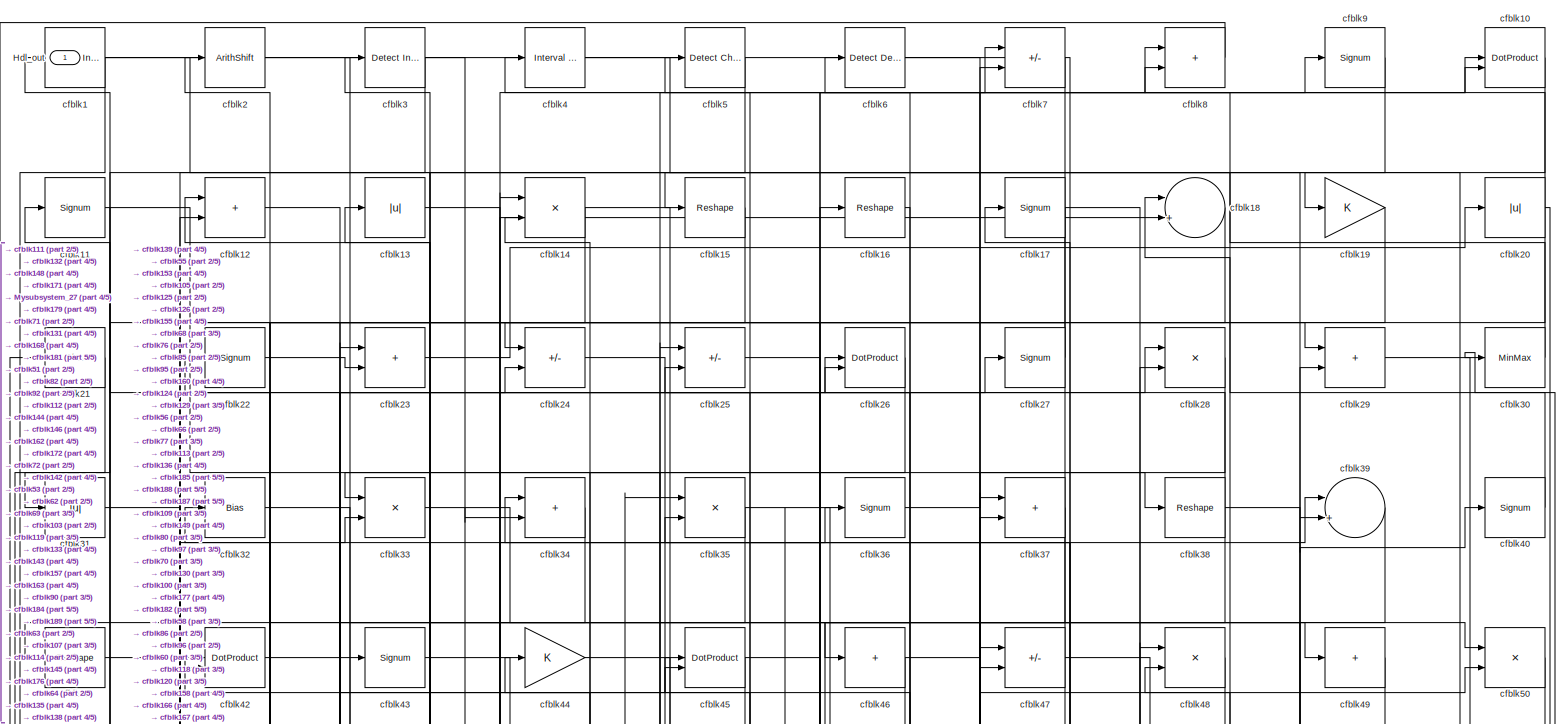
[diagram: root canvas - part 1/5, full width, top band]
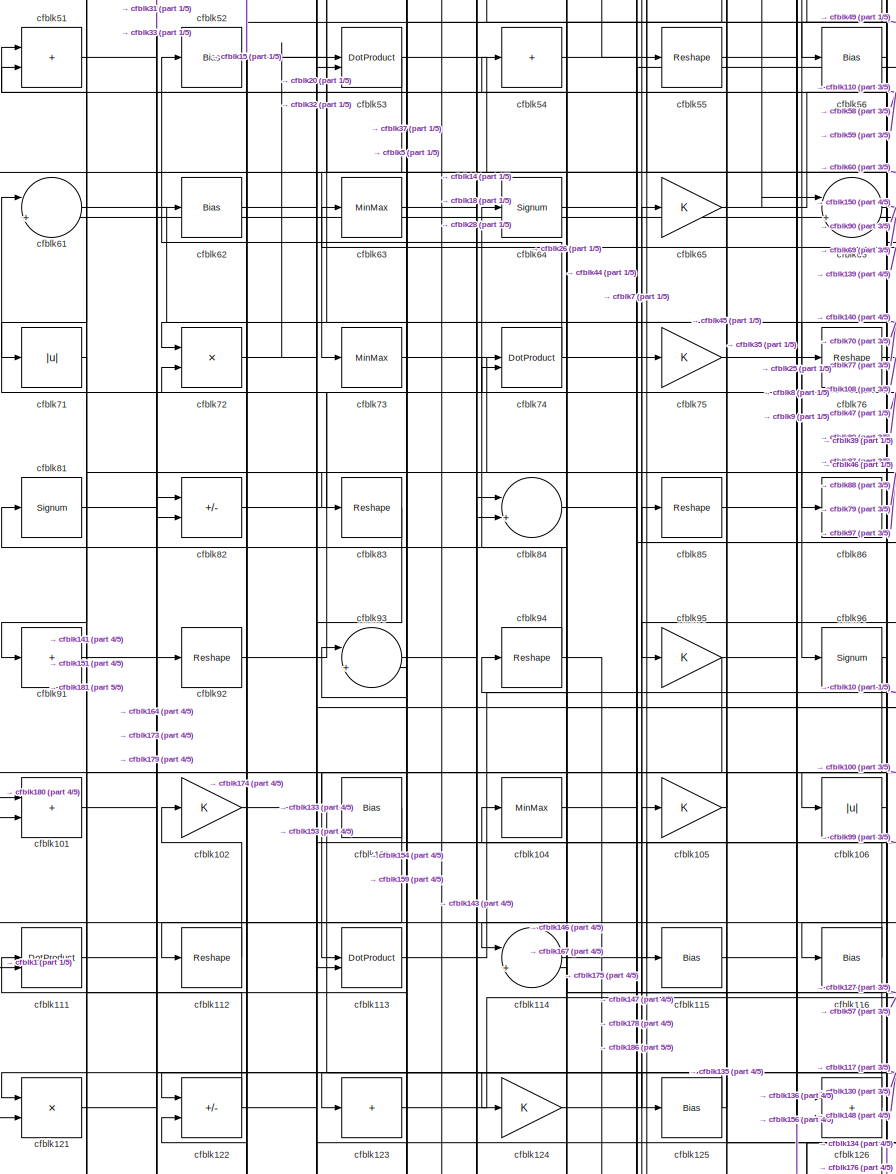
[diagram: root canvas - part 2/5, middle left region]
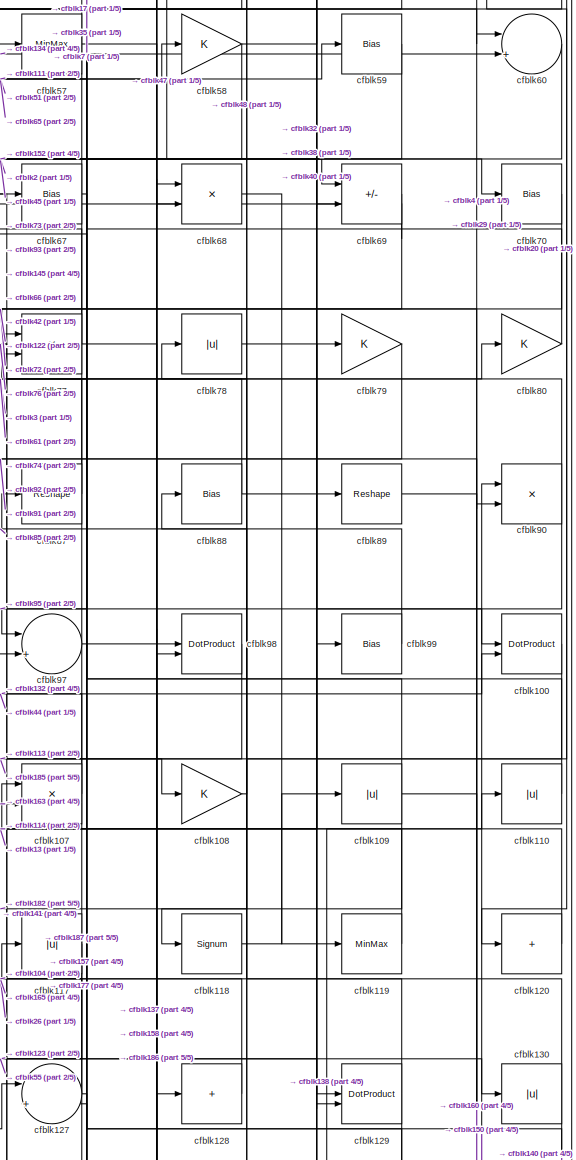
[diagram: root canvas - part 3/5, middle right region]
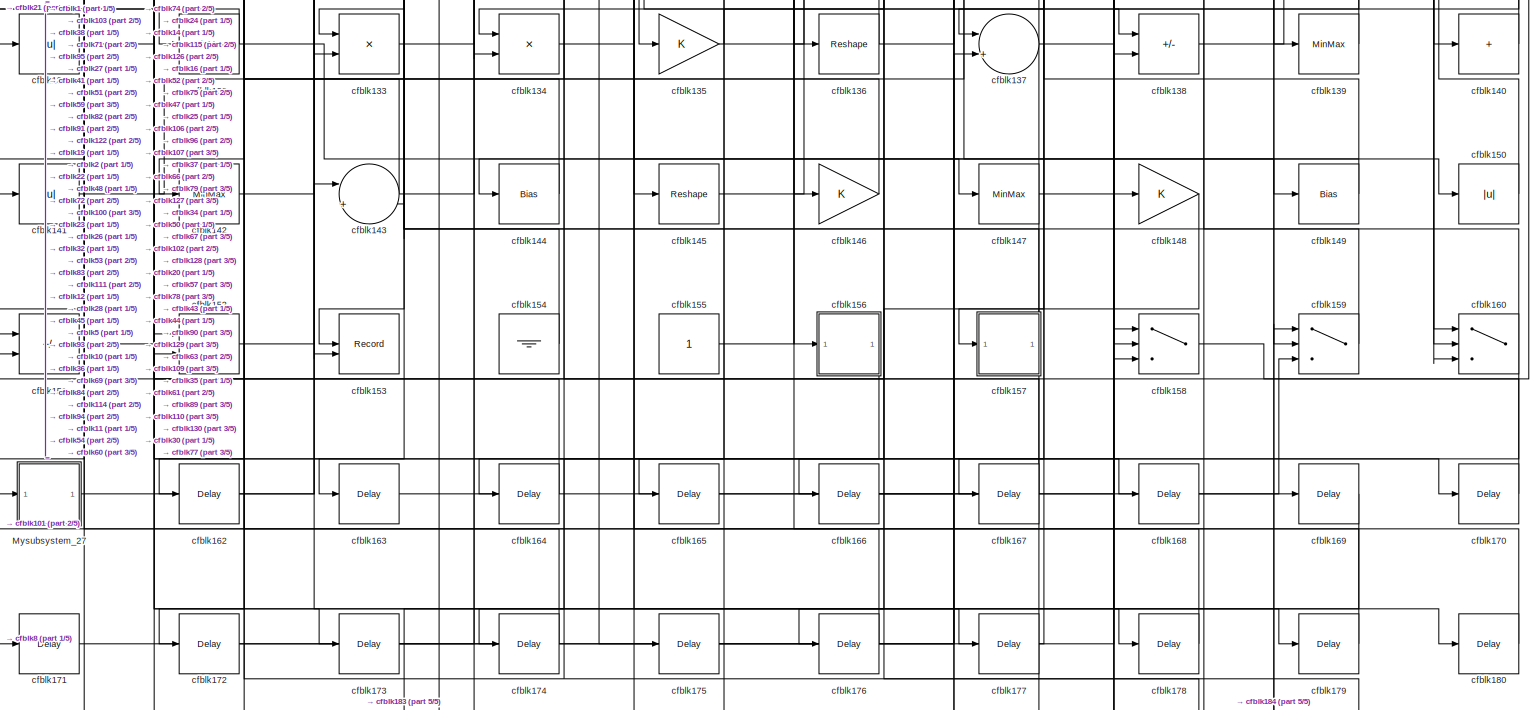
[diagram: root canvas - part 4/5, full width, bottom band]
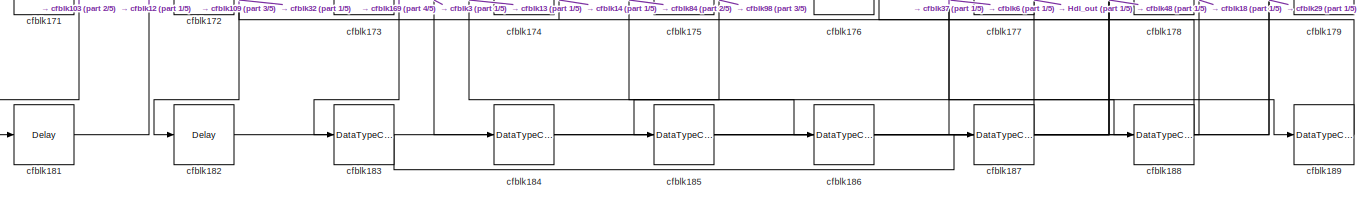
[diagram: root canvas - part 5/5, full width, bottom band]
MODEL slx_d763d41da8b3
KIND model
CONFIG AbsTol = auto
CONFIG EnableMultiTasking = off
CONFIG FixedStep = auto
CONFIG MaxStep = auto
CONFIG MinStep = auto
CONFIG RelTol = 1e-3
CONFIG SampleTimeConstraint = Unconstrained
CONFIG SolverName = VariableStepAuto
CONFIG StartTime = 0.0
CONFIG StopTime = 10.0
BLOCK [Outport] Hdl_out
  OutDataTypeStr = uint8
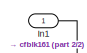
[diagram: Mysubsystem_27 - part 1/2, top right region]
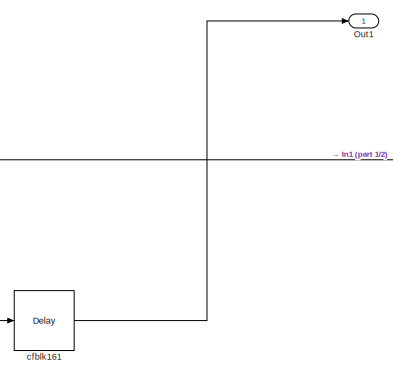
[diagram: Mysubsystem_27 - part 2/2, bottom left region]
BLOCK [SubSystem] Mysubsystem_27
  RTWFcnName = Mysubsystem_27
  RTWFcnNameOpts = User specified
  RTWFileNameOpts = Use function name
  RTWSystemCode = Reusable function
  TreatAsAtomicUnit = on
BLOCK [Inport] Mysubsystem_27/In1
BLOCK [Outport] Mysubsystem_27/Out1
BLOCK [Delay] Mysubsystem_27/cfblk161
  InputPortMap = u0
  SampleTime = 1
BLOCK [Reference] cfblk1  REF=simulink/Logic and Bit
Operations/Detect
Increase
  LibrarySourceBlock = hdlsllib/Logic and Bit\nOperations/Detect\nIncrease
  SourceBlock = simulink/Logic and Bit\nOperations/Detect\nIncrease
  SourceType = Detect Increase
BLOCK [DotProduct] cfblk10
  OutDataTypeStr = uint8
BLOCK [DotProduct] cfblk100
  OutDataTypeStr = uint8
BLOCK [Sum] cfblk101
  IconShape = rectangular
  OutDataTypeStr = uint8
BLOCK [Gain] cfblk102
  OutDataTypeStr = uint8
BLOCK [Bias] cfblk103
  Bias = 0.0
  SaturateOnIntegerOverflow = off
BLOCK [MinMax] cfblk104
  OutDataTypeStr = uint8
BLOCK [Gain] cfblk105
  OutDataTypeStr = uint8
BLOCK [Abs] cfblk106
  OutDataTypeStr = uint8
  SaturateOnIntegerOverflow = off
BLOCK [Product] cfblk107
  Inputs = */
  OutDataTypeStr = uint8
  RndMeth = Zero
  SaturateOnIntegerOverflow = on
BLOCK [Gain] cfblk108
  OutDataTypeStr = uint8
BLOCK [Abs] cfblk109
  OutDataTypeStr = uint8
  SaturateOnIntegerOverflow = off
BLOCK [Signum] cfblk11
BLOCK [Abs] cfblk110
  OutDataTypeStr = uint8
  SaturateOnIntegerOverflow = off
BLOCK [DotProduct] cfblk111
  OutDataTypeStr = uint8
BLOCK [Reshape] cfblk112
BLOCK [DotProduct] cfblk113
  OutDataTypeStr = uint8
BLOCK [Sum] cfblk114
  Inputs = |++
  OutDataTypeStr = uint8
BLOCK [Bias] cfblk115
  Bias = 0.0
  SaturateOnIntegerOverflow = off
BLOCK [Bias] cfblk116
  Bias = 0.0
  SaturateOnIntegerOverflow = off
BLOCK [Abs] cfblk117
  OutDataTypeStr = uint8
  SaturateOnIntegerOverflow = off
BLOCK [Signum] cfblk118
BLOCK [MinMax] cfblk119
  OutDataTypeStr = uint8
BLOCK [Sum] cfblk12
  IconShape = rectangular
  OutDataTypeStr = uint8
BLOCK [Sum] cfblk120
  IconShape = rectangular
  Inputs = +
  OutDataTypeStr = uint8
BLOCK [Product] cfblk121
  Inputs = */
  OutDataTypeStr = uint8
  RndMeth = Zero
  SaturateOnIntegerOverflow = on
BLOCK [Sum] cfblk122
  IconShape = rectangular
  Inputs = +-
  OutDataTypeStr = uint8
BLOCK [Sum] cfblk123
  IconShape = rectangular
  Inputs = +
  OutDataTypeStr = uint8
BLOCK [Gain] cfblk124
  OutDataTypeStr = uint8
BLOCK [Bias] cfblk125
  Bias = 0.0
  SaturateOnIntegerOverflow = off
BLOCK [Sum] cfblk126
  IconShape = rectangular
  OutDataTypeStr = uint8
BLOCK [Sum] cfblk127
  Inputs = |++
  OutDataTypeStr = uint8
BLOCK [Sum] cfblk128
  IconShape = rectangular
  Inputs = +
  OutDataTypeStr = uint8
BLOCK [DotProduct] cfblk129
  OutDataTypeStr = uint8
BLOCK [Abs] cfblk13
  OutDataTypeStr = uint8
  SaturateOnIntegerOverflow = off
BLOCK [Abs] cfblk130
  OutDataTypeStr = uint8
  SaturateOnIntegerOverflow = off
BLOCK [Abs] cfblk131
  OutDataTypeStr = uint8
  SaturateOnIntegerOverflow = off
BLOCK [MinMax] cfblk132
  OutDataTypeStr = uint8
BLOCK [Product] cfblk133
  Inputs = */
  OutDataTypeStr = uint8
  RndMeth = Zero
  SaturateOnIntegerOverflow = on
BLOCK [Product] cfblk134
  Inputs = */
  OutDataTypeStr = uint8
  RndMeth = Zero
  SaturateOnIntegerOverflow = on
BLOCK [Gain] cfblk135
  OutDataTypeStr = uint8
BLOCK [Reshape] cfblk136
BLOCK [Sum] cfblk137
  Inputs = |++
  OutDataTypeStr = uint8
BLOCK [Sum] cfblk138
  IconShape = rectangular
  Inputs = +-
  OutDataTypeStr = uint8
BLOCK [MinMax] cfblk139
  OutDataTypeStr = uint8
BLOCK [Product] cfblk14
  Inputs = */
  OutDataTypeStr = uint8
  RndMeth = Zero
  SaturateOnIntegerOverflow = on
BLOCK [Sum] cfblk140
  IconShape = rectangular
  Inputs = +
  OutDataTypeStr = uint8
BLOCK [Abs] cfblk141
  OutDataTypeStr = uint8
  SaturateOnIntegerOverflow = off
BLOCK [MinMax] cfblk142
  OutDataTypeStr = uint8
BLOCK [Sum] cfblk143
  Inputs = |++
  OutDataTypeStr = uint8
BLOCK [Bias] cfblk144
  Bias = 0.0
  SaturateOnIntegerOverflow = off
BLOCK [Reshape] cfblk145
BLOCK [Gain] cfblk146
  OutDataTypeStr = uint8
BLOCK [MinMax] cfblk147
  OutDataTypeStr = uint8
BLOCK [Gain] cfblk148
  OutDataTypeStr = uint8
BLOCK [Bias] cfblk149
  Bias = 0.0
  SaturateOnIntegerOverflow = off
BLOCK [Reshape] cfblk15
BLOCK [Abs] cfblk150
  OutDataTypeStr = uint8
  SaturateOnIntegerOverflow = off
BLOCK [Sum] cfblk151
  IconShape = rectangular
  Inputs = +-
  OutDataTypeStr = uint8
BLOCK [Sum] cfblk152
  IconShape = rectangular
  OutDataTypeStr = uint8
BLOCK [Record] cfblk153
  CompatibilityTag = XY
  FileSettingsInternal = {"entries":[{"content":{"excelSettings":{"content":{},"type":"Streamout.ExcelSettings"}},"type":"Streamout.FileSettingStorage","uuid":""}],"packageUris":["http:\/\/schema.mathworks.com\/mf0\/streamout_blocks\/R2020a"],"version":"1.0"}
  Layout = [1 1]
  SignalsInternal = {"entries":[{"content":{"signals":[{"content":{"blockPath":[],"dimensions":[1],"domain":"","lineColor":"#a2142f","plots":[1],"port":1,"signalID":26840,"signalName":"cfblk45"},"type":"RecordBlkView.Signal","uuid":""},{"content":{"blockPath":[],"dimensions":[1],"domain":"","lineColor":"#139fff","plots":[1],"port":2,"signalID":26843,"signalName":"cfblk83"},"type":"RecordBlkView.Signal","uuid":""}]},"...<+142ch>
  VisualizationBindings = {"xyplotplugin":{"info":[{"series":[{"bindingParametersList":[{"parameter":"X-Axis","signalID":26840,"signalName":"cfblk45"},{"parameter":"Y-Axis","signalID":26843,"signalName":"cfblk83"}],"seriesID":20966}],"subplotID":1}]}}
  st = -1
BLOCK [Ground] cfblk154
BLOCK [Constant] cfblk155
  OutDataTypeStr = uint8
  SampleTime = -1
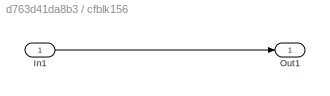
BLOCK [SubSystem] cfblk156
  LibrarySourceBlock = hdlsllib/Ports &\nSubsystems/Subsystem
BLOCK [Inport] cfblk156/In1
BLOCK [Outport] cfblk156/Out1
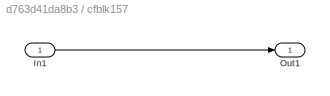
BLOCK [SubSystem] cfblk157
  LibrarySourceBlock = hdlsllib/Ports &\nSubsystems/Subsystem
BLOCK [Inport] cfblk157/In1
BLOCK [Outport] cfblk157/Out1
BLOCK [Switch] cfblk158
  InputSameDT = off
  OutDataTypeStr = uint8
  SaturateOnIntegerOverflow = off
BLOCK [Switch] cfblk159
  InputSameDT = off
  OutDataTypeStr = uint8
  SaturateOnIntegerOverflow = off
BLOCK [Reshape] cfblk16
BLOCK [Switch] cfblk160
  InputSameDT = off
  OutDataTypeStr = uint8
  SaturateOnIntegerOverflow = off
BLOCK [Delay] cfblk162
  InputPortMap = u0
  SampleTime = 1
BLOCK [Delay] cfblk163
  InputPortMap = u0
  SampleTime = 1
BLOCK [Delay] cfblk164
  InputPortMap = u0
  SampleTime = 1
BLOCK [Delay] cfblk165
  InputPortMap = u0
  SampleTime = 1
BLOCK [Delay] cfblk166
  InputPortMap = u0
  SampleTime = 1
BLOCK [Delay] cfblk167
  InputPortMap = u0
  SampleTime = 1
BLOCK [Delay] cfblk168
  InputPortMap = u0
  SampleTime = 1
BLOCK [Delay] cfblk169
  InputPortMap = u0
  SampleTime = 1
BLOCK [Signum] cfblk17
BLOCK [Delay] cfblk170
  InputPortMap = u0
  SampleTime = 1
BLOCK [Delay] cfblk171
  InputPortMap = u0
  SampleTime = 1
BLOCK [Delay] cfblk172
  InputPortMap = u0
  SampleTime = 1
BLOCK [Delay] cfblk173
  InputPortMap = u0
  SampleTime = 1
BLOCK [Delay] cfblk174
  InputPortMap = u0
  SampleTime = 1
BLOCK [Delay] cfblk175
  InputPortMap = u0
  SampleTime = 1
BLOCK [Delay] cfblk176
  InputPortMap = u0
  SampleTime = 1
BLOCK [Delay] cfblk177
  InputPortMap = u0
  SampleTime = 1
BLOCK [Delay] cfblk178
  InputPortMap = u0
  SampleTime = 1
BLOCK [Delay] cfblk179
  InputPortMap = u0
  SampleTime = 1
BLOCK [Sum] cfblk18
  Inputs = |++
  OutDataTypeStr = uint8
BLOCK [Delay] cfblk180
  InputPortMap = u0
  SampleTime = 1
BLOCK [Delay] cfblk181
  InputPortMap = u0
  SampleTime = 1
BLOCK [Delay] cfblk182
  InputPortMap = u0
  SampleTime = 1
BLOCK [DataTypeConversion] cfblk183
  OutDataTypeStr = uint8
  RndMeth = Floor
  SaturateOnIntegerOverflow = off
BLOCK [DataTypeConversion] cfblk184
  OutDataTypeStr = uint8
  RndMeth = Floor
  SaturateOnIntegerOverflow = off
BLOCK [DataTypeConversion] cfblk185
  OutDataTypeStr = uint8
  RndMeth = Floor
  SaturateOnIntegerOverflow = off
BLOCK [DataTypeConversion] cfblk186
  OutDataTypeStr = uint8
  RndMeth = Floor
  SaturateOnIntegerOverflow = off
BLOCK [DataTypeConversion] cfblk187
  OutDataTypeStr = uint8
  RndMeth = Floor
  SaturateOnIntegerOverflow = off
BLOCK [DataTypeConversion] cfblk188
  OutDataTypeStr = uint8
  RndMeth = Floor
  SaturateOnIntegerOverflow = off
BLOCK [DataTypeConversion] cfblk189
  OutDataTypeStr = uint8
  RndMeth = Floor
  SaturateOnIntegerOverflow = off
BLOCK [Gain] cfblk19
  OutDataTypeStr = uint8
BLOCK [ArithShift] cfblk2
  BitShiftNumber = 8
  InputPortMap = u0
BLOCK [Abs] cfblk20
  OutDataTypeStr = uint8
  SaturateOnIntegerOverflow = off
BLOCK [Bias] cfblk21
  Bias = 0.0
  SaturateOnIntegerOverflow = off
BLOCK [Signum] cfblk22
BLOCK [Sum] cfblk23
  IconShape = rectangular
  OutDataTypeStr = uint8
BLOCK [Sum] cfblk24
  IconShape = rectangular
  Inputs = +-
  OutDataTypeStr = uint8
BLOCK [Sum] cfblk25
  IconShape = rectangular
  Inputs = +-
  OutDataTypeStr = uint8
BLOCK [DotProduct] cfblk26
  OutDataTypeStr = uint8
BLOCK [Signum] cfblk27
BLOCK [Product] cfblk28
  Inputs = */
  OutDataTypeStr = uint8
  RndMeth = Zero
  SaturateOnIntegerOverflow = on
BLOCK [Sum] cfblk29
  IconShape = rectangular
  OutDataTypeStr = uint8
BLOCK [Reference] cfblk3  REF=simulink/Logic and Bit
Operations/Detect
Increase
  LibrarySourceBlock = hdlsllib/Logic and Bit\nOperations/Detect\nIncrease
  SourceBlock = simulink/Logic and Bit\nOperations/Detect\nIncrease
  SourceType = Detect Increase
BLOCK [MinMax] cfblk30
  OutDataTypeStr = uint8
BLOCK [Abs] cfblk31
  OutDataTypeStr = uint8
  SaturateOnIntegerOverflow = off
BLOCK [Bias] cfblk32
  Bias = 0.0
  SaturateOnIntegerOverflow = off
BLOCK [Product] cfblk33
  Inputs = */
  OutDataTypeStr = uint8
  RndMeth = Zero
  SaturateOnIntegerOverflow = on
BLOCK [Sum] cfblk34
  IconShape = rectangular
  OutDataTypeStr = uint8
BLOCK [Product] cfblk35
  Inputs = */
  OutDataTypeStr = uint8
  RndMeth = Zero
  SaturateOnIntegerOverflow = on
BLOCK [Signum] cfblk36
BLOCK [Sum] cfblk37
  IconShape = rectangular
  OutDataTypeStr = uint8
BLOCK [Reshape] cfblk38
BLOCK [Sum] cfblk39
  Inputs = |++
  OutDataTypeStr = uint8
BLOCK [Reference] cfblk4  REF=hdlsllib/Logic and Bit
Operations/Interval Test
  SourceBlock = hdlsllib/Logic and Bit\nOperations/Interval Test
  SourceType = Interval Test
BLOCK [Signum] cfblk40
BLOCK [Reshape] cfblk41
BLOCK [DotProduct] cfblk42
  OutDataTypeStr = uint8
BLOCK [Signum] cfblk43
BLOCK [Gain] cfblk44
  OutDataTypeStr = uint8
BLOCK [DotProduct] cfblk45
  OutDataTypeStr = uint8
BLOCK [Sum] cfblk46
  IconShape = rectangular
  Inputs = +
  OutDataTypeStr = uint8
BLOCK [Sum] cfblk47
  IconShape = rectangular
  Inputs = +-
  OutDataTypeStr = uint8
BLOCK [Product] cfblk48
  Inputs = */
  OutDataTypeStr = uint8
  RndMeth = Zero
  SaturateOnIntegerOverflow = on
BLOCK [Sum] cfblk49
  IconShape = rectangular
  Inputs = +
  OutDataTypeStr = uint8
BLOCK [Reference] cfblk5  REF=simulink/Logic and Bit
Operations/Detect
Change
  LibrarySourceBlock = hdlsllib/Logic and Bit\nOperations/Detect\nChange
  SourceBlock = simulink/Logic and Bit\nOperations/Detect\nChange
  SourceType = Detect Change
BLOCK [Product] cfblk50
  Inputs = */
  OutDataTypeStr = uint8
  RndMeth = Zero
  SaturateOnIntegerOverflow = on
BLOCK [Sum] cfblk51
  IconShape = rectangular
  OutDataTypeStr = uint8
BLOCK [Bias] cfblk52
  Bias = 0.0
  SaturateOnIntegerOverflow = off
BLOCK [DotProduct] cfblk53
  OutDataTypeStr = uint8
BLOCK [Sum] cfblk54
  IconShape = rectangular
  Inputs = +
  OutDataTypeStr = uint8
BLOCK [Reshape] cfblk55
BLOCK [Bias] cfblk56
  Bias = 0.0
  SaturateOnIntegerOverflow = off
BLOCK [MinMax] cfblk57
  OutDataTypeStr = uint8
BLOCK [Gain] cfblk58
  OutDataTypeStr = uint8
BLOCK [Bias] cfblk59
  Bias = 0.0
  SaturateOnIntegerOverflow = off
BLOCK [Reference] cfblk6  REF=simulink/Logic and Bit
Operations/Detect
Decrease
  LibrarySourceBlock = hdlsllib/Logic and Bit\nOperations/Detect\nDecrease
  SourceBlock = simulink/Logic and Bit\nOperations/Detect\nDecrease
  SourceType = Detect Decrease
BLOCK [Sum] cfblk60
  Inputs = |++
  OutDataTypeStr = uint8
BLOCK [Sum] cfblk61
  Inputs = |++
  OutDataTypeStr = uint8
BLOCK [Bias] cfblk62
  Bias = 0.0
  SaturateOnIntegerOverflow = off
BLOCK [MinMax] cfblk63
  OutDataTypeStr = uint8
BLOCK [Signum] cfblk64
BLOCK [Gain] cfblk65
  OutDataTypeStr = uint8
BLOCK [Sum] cfblk66
  Inputs = |++
  OutDataTypeStr = uint8
BLOCK [Bias] cfblk67
  Bias = 0.0
  SaturateOnIntegerOverflow = off
BLOCK [Product] cfblk68
  Inputs = */
  OutDataTypeStr = uint8
  RndMeth = Zero
  SaturateOnIntegerOverflow = on
BLOCK [Sum] cfblk69
  IconShape = rectangular
  Inputs = +-
  OutDataTypeStr = uint8
BLOCK [Sum] cfblk7
  IconShape = rectangular
  Inputs = +-
  OutDataTypeStr = uint8
BLOCK [Bias] cfblk70
  Bias = 0.0
  SaturateOnIntegerOverflow = off
BLOCK [Abs] cfblk71
  OutDataTypeStr = uint8
  SaturateOnIntegerOverflow = off
BLOCK [Product] cfblk72
  Inputs = */
  OutDataTypeStr = uint8
  RndMeth = Zero
  SaturateOnIntegerOverflow = on
BLOCK [MinMax] cfblk73
  OutDataTypeStr = uint8
BLOCK [DotProduct] cfblk74
  OutDataTypeStr = uint8
BLOCK [Gain] cfblk75
  OutDataTypeStr = uint8
BLOCK [Reshape] cfblk76
BLOCK [Product] cfblk77
  Inputs = */
  OutDataTypeStr = uint8
  RndMeth = Zero
  SaturateOnIntegerOverflow = on
BLOCK [Abs] cfblk78
  OutDataTypeStr = uint8
  SaturateOnIntegerOverflow = off
BLOCK [Gain] cfblk79
  OutDataTypeStr = uint8
BLOCK [Sum] cfblk8
  IconShape = rectangular
  OutDataTypeStr = uint8
BLOCK [Gain] cfblk80
  OutDataTypeStr = uint8
BLOCK [Signum] cfblk81
BLOCK [Sum] cfblk82
  IconShape = rectangular
  Inputs = +-
  OutDataTypeStr = uint8
BLOCK [Reshape] cfblk83
BLOCK [Sum] cfblk84
  Inputs = |++
  OutDataTypeStr = uint8
BLOCK [Reshape] cfblk85
BLOCK [Sum] cfblk86
  IconShape = rectangular
  Inputs = +
  OutDataTypeStr = uint8
BLOCK [Reshape] cfblk87
BLOCK [Bias] cfblk88
  Bias = 0.0
  SaturateOnIntegerOverflow = off
BLOCK [Reshape] cfblk89
BLOCK [Signum] cfblk9
BLOCK [Product] cfblk90
  Inputs = */
  OutDataTypeStr = uint8
  RndMeth = Zero
  SaturateOnIntegerOverflow = on
BLOCK [Sum] cfblk91
  IconShape = rectangular
  Inputs = +
  OutDataTypeStr = uint8
BLOCK [Reshape] cfblk92
BLOCK [Sum] cfblk93
  Inputs = |++
  OutDataTypeStr = uint8
BLOCK [Reshape] cfblk94
BLOCK [Gain] cfblk95
  OutDataTypeStr = uint8
BLOCK [Signum] cfblk96
BLOCK [Sum] cfblk97
  Inputs = |++
  OutDataTypeStr = uint8
BLOCK [DotProduct] cfblk98
  OutDataTypeStr = uint8
BLOCK [Bias] cfblk99
  Bias = 0.0
  SaturateOnIntegerOverflow = off
LINE Mysubsystem_27/In1:1 -> Mysubsystem_27/cfblk161:1
LINE Mysubsystem_27/cfblk161:1 -> Mysubsystem_27/Out1:1
LINE Mysubsystem_27:1 -> cfblk143:1
LINE cfblk100:1 -> cfblk113:1
LINE cfblk101:1 -> cfblk125:1
LINE cfblk102:1 -> cfblk148:1
NET cfblk103:1 -> cfblk151:2, cfblk181:1
LINE cfblk104:1 -> cfblk87:1
LINE cfblk105:1 -> cfblk5:1
LINE cfblk106:1 -> cfblk176:1
LINE cfblk107:1 -> cfblk44:1
LINE cfblk108:1 -> cfblk88:1
NET cfblk109:1 -> cfblk160:3, cfblk182:1, cfblk35:2
LINE cfblk10:1 -> cfblk19:1
LINE cfblk110:1 -> cfblk51:1
LINE cfblk111:1 -> cfblk59:1
LINE cfblk112:1 -> cfblk102:1
LINE cfblk113:1 -> cfblk10:1
LINE cfblk114:1 -> cfblk99:1
LINE cfblk115:1 -> cfblk156:1
LINE cfblk116:1 -> cfblk54:1
LINE cfblk117:1 -> cfblk123:1
LINE cfblk118:1 -> cfblk109:1
LINE cfblk119:1 -> cfblk13:1
NET cfblk11:1 -> cfblk145:1, cfblk31:1
LINE cfblk120:1 -> cfblk107:1
LINE cfblk121:1 -> cfblk74:2
NET cfblk122:1 -> cfblk105:1, cfblk51:2
LINE cfblk123:1 -> cfblk57:1
LINE cfblk124:1 -> cfblk65:1
NET cfblk125:1 -> cfblk121:1, cfblk45:1
LINE cfblk126:1 -> cfblk81:1
NET cfblk127:1 -> cfblk104:1, cfblk157:1
LINE cfblk128:1 -> cfblk117:1
NET cfblk129:1 -> cfblk165:1, cfblk26:2
LINE cfblk12:1 -> cfblk43:1
NET cfblk130:1 -> cfblk138:2, cfblk48:2
LINE cfblk131:1 -> cfblk27:1
NET cfblk132:1 -> cfblk100:2, cfblk131:1, cfblk159:2
LINE cfblk133:1 -> cfblk10:2
LINE cfblk134:1 -> cfblk60:2
NET cfblk135:1 -> cfblk115:1, cfblk47:2
NET cfblk136:1 -> cfblk25:2, cfblk50:2
LINE cfblk137:1 -> cfblk128:1
LINE cfblk138:1 -> cfblk90:1
LINE cfblk139:1 -> cfblk63:1
LINE cfblk13:1 -> cfblk189:1
LINE cfblk140:1 -> cfblk77:2
LINE cfblk141:1 -> cfblk79:1
NET cfblk142:1 -> cfblk26:1, cfblk45:2
NET cfblk143:1 -> cfblk122:2, cfblk36:1
LINE cfblk144:1 -> cfblk22:1
LINE cfblk145:1 -> cfblk67:1
NET cfblk146:1 -> cfblk2:1, cfblk94:1
LINE cfblk147:1 -> cfblk180:1
LINE cfblk148:1 -> cfblk21:1
NET cfblk149:1 -> cfblk144:1, cfblk34:1
NET cfblk14:1 -> cfblk138:1, cfblk172:1
LINE cfblk150:1 -> cfblk110:1
LINE cfblk151:1 -> cfblk170:1
LINE cfblk152:1 -> cfblk127:1
LINE cfblk154:1 -> cfblk111:1
LINE cfblk155:1 -> cfblk16:1
LINE cfblk156/In1:1 -> cfblk156/Out1:1
LINE cfblk156:1 -> cfblk174:1
LINE cfblk157/In1:1 -> cfblk157/Out1:1
LINE cfblk157:1 -> cfblk12:1
LINE cfblk158:1 -> cfblk30:1
LINE cfblk159:1 -> cfblk93:1
LINE cfblk15:1 -> cfblk112:1
NET cfblk160:1 -> cfblk164:1, cfblk78:1
LINE cfblk162:1 -> cfblk23:1
LINE cfblk163:1 -> cfblk107:2
LINE cfblk164:1 -> cfblk82:1
LINE cfblk165:1 -> cfblk159:1
LINE cfblk166:1 -> cfblk28:2
LINE cfblk167:1 -> cfblk114:2
LINE cfblk168:1 -> cfblk159:3
LINE cfblk169:1 -> cfblk183:1
LINE cfblk16:1 -> cfblk46:1
LINE cfblk170:1 -> cfblk152:1
LINE cfblk171:1 -> cfblk37:1
LINE cfblk172:1 -> cfblk158:3
LINE cfblk173:1 -> cfblk84:1
LINE cfblk174:1 -> cfblk72:2
LINE cfblk175:1 -> cfblk137:2
LINE cfblk176:1 -> cfblk25:1
LINE cfblk177:1 -> cfblk127:2
LINE cfblk178:1 -> cfblk126:1
LINE cfblk179:1 -> cfblk1:1
NET cfblk17:1 -> cfblk29:1, cfblk42:2
LINE cfblk180:1 -> cfblk101:1
LINE cfblk181:1 -> cfblk12:2
LINE cfblk182:1 -> cfblk29:2
LINE cfblk183:1 -> cfblk187:1
LINE cfblk184:1 -> cfblk169:1
NET cfblk185:1 -> cfblk37:2, cfblk48:1
LINE cfblk186:1 -> cfblk98:1
NET cfblk187:1 -> Hdl_out:1, cfblk98:2
NET cfblk188:1 -> cfblk14:2, cfblk18:1, cfblk32:1
LINE cfblk189:1 -> cfblk6:1
NET cfblk18:1 -> cfblk126:2, cfblk71:1
LINE cfblk19:1 -> cfblk162:1
NET cfblk1:1 -> cfblk111:2, cfblk39:2
NET cfblk20:1 -> cfblk120:1, cfblk158:2, cfblk4:1, cfblk53:2
LINE cfblk21:1 -> cfblk132:1
LINE cfblk22:1 -> cfblk23:2
LINE cfblk23:1 -> cfblk20:1
LINE cfblk24:1 -> cfblk135:1
LINE cfblk25:1 -> cfblk76:1
LINE cfblk26:1 -> cfblk114:1
LINE cfblk27:1 -> cfblk24:1
LINE cfblk28:1 -> cfblk143:2
LINE cfblk29:1 -> cfblk118:1
LINE cfblk2:1 -> cfblk69:1
LINE cfblk30:1 -> cfblk15:1
LINE cfblk31:1 -> cfblk92:1
NET cfblk32:1 -> cfblk177:1, cfblk69:2, cfblk86:1
NET cfblk33:1 -> cfblk34:2, cfblk50:1
LINE cfblk34:1 -> cfblk133:1
NET cfblk35:1 -> cfblk113:2, cfblk160:1, cfblk66:1
LINE cfblk36:1 -> cfblk38:1
NET cfblk37:1 -> cfblk103:1, cfblk72:1
NET cfblk38:1 -> Mysubsystem_27:1, cfblk100:1, cfblk11:1
NET cfblk39:1 -> cfblk56:1, cfblk66:2
NET cfblk3:1 -> cfblk184:1, cfblk41:1
LINE cfblk40:1 -> cfblk8:1
LINE cfblk41:1 -> cfblk168:1
LINE cfblk42:1 -> cfblk24:2
LINE cfblk43:1 -> cfblk149:1
NET cfblk44:1 -> cfblk139:1, cfblk35:1, cfblk55:1
NET cfblk45:1 -> cfblk153:1, cfblk68:2
NET cfblk46:1 -> cfblk124:1, cfblk49:1
LINE cfblk47:1 -> cfblk70:1
LINE cfblk48:1 -> cfblk142:1
LINE cfblk49:1 -> cfblk96:1
LINE cfblk4:1 -> cfblk60:1
NET cfblk50:1 -> cfblk166:1, cfblk167:1
NET cfblk51:1 -> cfblk173:1, cfblk33:2
LINE cfblk52:1 -> cfblk136:1
NET cfblk53:1 -> cfblk101:2, cfblk133:2, cfblk75:1
LINE cfblk54:1 -> cfblk178:1
LINE cfblk55:1 -> cfblk130:1
LINE cfblk56:1 -> cfblk116:1
LINE cfblk57:1 -> cfblk158:1
NET cfblk58:1 -> cfblk40:1, cfblk93:2
LINE cfblk59:1 -> cfblk152:2
NET cfblk5:1 -> cfblk163:1, cfblk82:2
LINE cfblk60:1 -> cfblk73:1
LINE cfblk61:1 -> cfblk140:1
LINE cfblk62:1 -> cfblk39:1
NET cfblk63:1 -> cfblk18:2, cfblk28:1
LINE cfblk64:1 -> cfblk7:1
LINE cfblk65:1 -> cfblk58:1
NET cfblk66:1 -> cfblk150:1, cfblk90:2
LINE cfblk67:1 -> cfblk137:1
LINE cfblk68:1 -> cfblk89:1
NET cfblk69:1 -> cfblk134:2, cfblk61:2
LINE cfblk6:1 -> cfblk188:1
LINE cfblk70:1 -> cfblk122:1
LINE cfblk71:1 -> cfblk141:1
NET cfblk72:1 -> cfblk53:1, cfblk77:1
LINE cfblk73:1 -> cfblk97:2
NET cfblk74:1 -> cfblk147:1, cfblk52:1
LINE cfblk75:1 -> cfblk146:1
LINE cfblk76:1 -> cfblk108:1
NET cfblk77:1 -> cfblk129:2, cfblk42:1
LINE cfblk78:1 -> cfblk129:1
LINE cfblk79:1 -> cfblk91:1
LINE cfblk7:1 -> cfblk97:1
LINE cfblk80:1 -> cfblk17:1
NET cfblk81:1 -> cfblk62:1, cfblk83:1
NET cfblk82:1 -> cfblk14:1, cfblk7:2
LINE cfblk83:1 -> cfblk153:2
LINE cfblk84:1 -> cfblk186:1
LINE cfblk85:1 -> cfblk9:1
LINE cfblk86:1 -> cfblk106:1
LINE cfblk87:1 -> cfblk74:1
NET cfblk88:1 -> cfblk119:1, cfblk61:1
LINE cfblk89:1 -> cfblk160:2
LINE cfblk8:1 -> cfblk171:1
NET cfblk90:1 -> cfblk3:1, cfblk95:1
LINE cfblk91:1 -> cfblk179:1
NET cfblk92:1 -> cfblk47:1, cfblk80:1
LINE cfblk93:1 -> cfblk84:2
NET cfblk94:1 -> cfblk175:1, cfblk64:1
NET cfblk95:1 -> cfblk151:1, cfblk8:2
NET cfblk96:1 -> cfblk121:2, cfblk134:1
LINE cfblk97:1 -> cfblk68:1
LINE cfblk98:1 -> cfblk185:1
LINE cfblk99:1 -> cfblk85:1
LINE cfblk9:1 -> cfblk33:1
note: NET lines group one-source signal fan-out (src -> all destinations, sorted); 1:1 wires keep LINE
